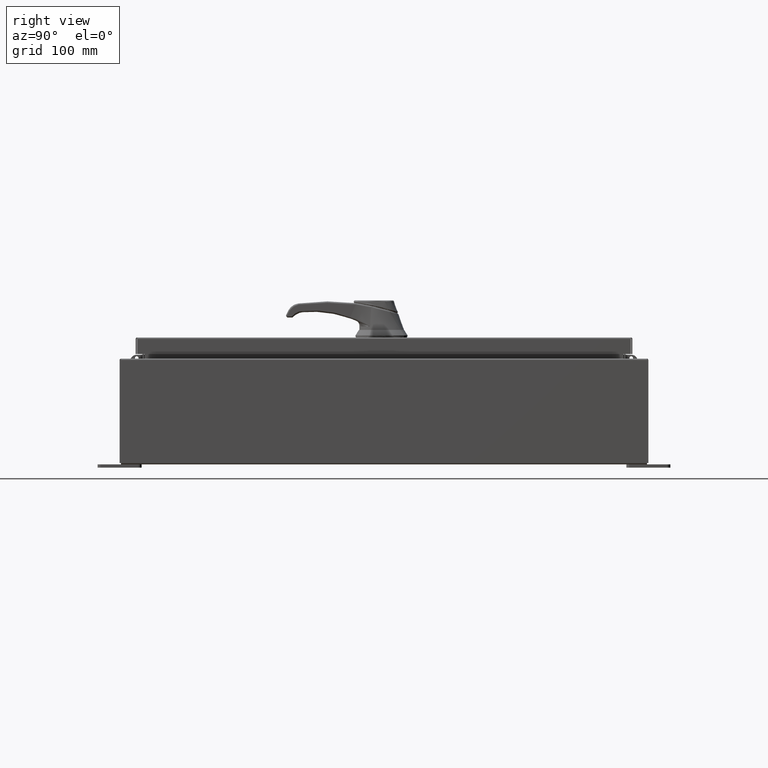
[diagram: clean part render]
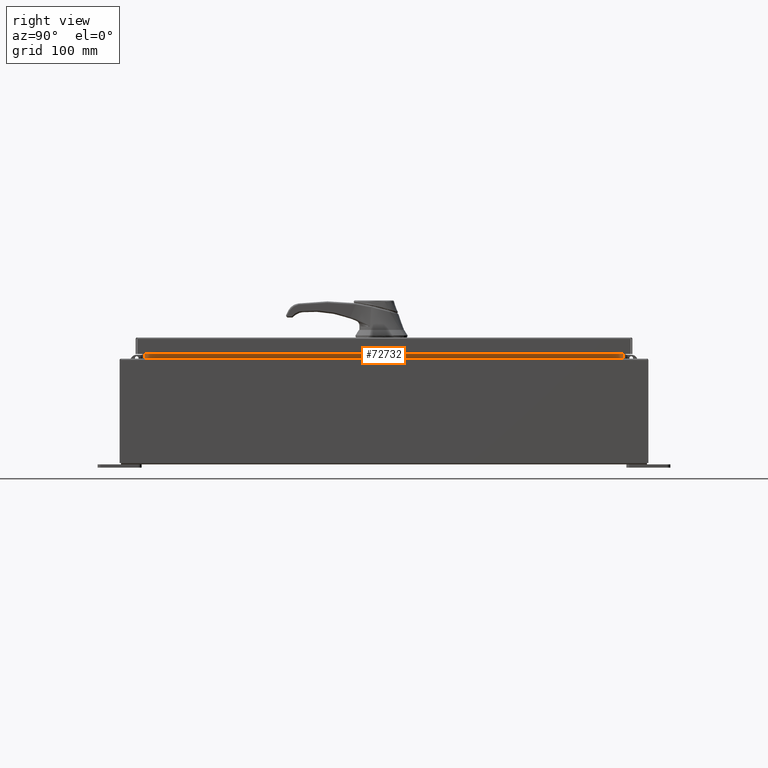
[diagram: same view with one face highlighted and labeled with its STEP entity id]
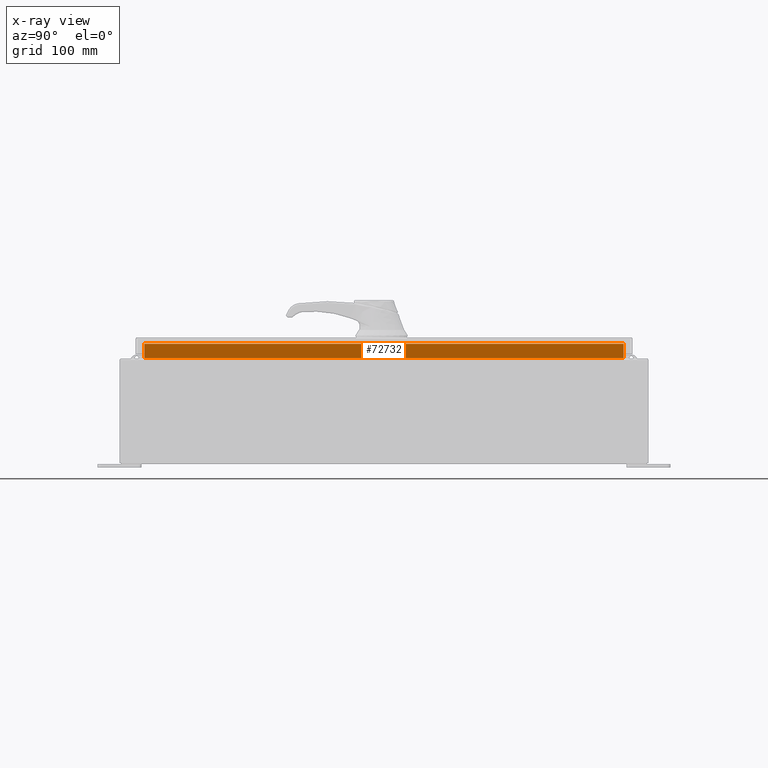
[diagram: x-ray of the same camera — body ghosted, the highlighted face saturated]
A machine part, right view. The second image highlights one B-rep face of the part: STEP entity #72732.
The next image is the same camera in x-ray: the body ghosted, the highlighted face saturated — about 0% of this face is hidden behind the body in this view.
In plain terms, the highlighted planar face has unit normal (1, 0, -0).
Its self-contained STEP definition (entity closure, byte-faithful):
#1093 = DIRECTION ( 'NONE',  ( 1.607708244547244000E-016, -1.000000000000000000, 1.607708244547244000E-016 ) ) ;
#6811 = ORIENTED_EDGE ( 'NONE', *, *, #83410, .F. ) ;
#8438 = LINE ( 'NONE', #110750, #54300 ) ;
#13467 = VECTOR ( 'NONE', #67002, 39.37007874015748100 ) ;
#19508 = CARTESIAN_POINT ( 'NONE',  ( 10.69970000000001400, 13.59375000000000200, 5.938300000000010600 ) ) ;
#22966 = ORIENTED_EDGE ( 'NONE', *, *, #31463, .F. ) ;
#25908 = EDGE_CURVE ( 'NONE', #48449, #116810, #83626, .T. ) ;
#31463 = EDGE_CURVE ( 'NONE', #116810, #56717, #8438, .T. ) ;
#34555 = VECTOR ( 'NONE', #1093, 39.37007874015748100 ) ;
#42793 = DIRECTION ( 'NONE',  ( 1.000000000000000000, 0.0000000000000000000, -4.723826639860392000E-015 ) ) ;
#43901 = CARTESIAN_POINT ( 'NONE',  ( 10.69970000000001800, -13.59375000000000400, 5.938300000000012300 ) ) ;
#47645 = CARTESIAN_POINT ( 'NONE',  ( 10.69970000000002100, -13.59375000000000200, 6.850600000000010700 ) ) ;
#48449 = VERTEX_POINT ( 'NONE', #85001 ) ;
#54300 = VECTOR ( 'NONE', #65192, 39.37007874015748100 ) ;
#55723 = FACE_OUTER_BOUND ( 'NONE', #94704, .T. ) ;
#56717 = VERTEX_POINT ( 'NONE', #80331 ) ;
#58968 = LINE ( 'NONE', #19508, #34555 ) ;
#60363 = LINE ( 'NONE', #47645, #108933 ) ;
#64003 = VERTEX_POINT ( 'NONE', #43901 ) ;
#64248 = ORIENTED_EDGE ( 'NONE', *, *, #25908, .F. ) ;
#65192 = DIRECTION ( 'NONE',  ( -4.723826639860392000E-015, -0.0000000000000000000, -1.000000000000000000 ) ) ;
#67002 = DIRECTION ( 'NONE',  ( 0.0000000000000000000, 1.000000000000000000, 0.0000000000000000000 ) ) ;
#71848 = AXIS2_PLACEMENT_3D ( 'NONE', #88418, #42793, #106771 ) ;
#72732 = ADVANCED_FACE ( 'NONE', ( #55723 ), #79175, .T. ) ;
#79175 = PLANE ( 'NONE',  #71848 ) ;
#80331 = CARTESIAN_POINT ( 'NONE',  ( 10.69970000000001800, 13.59375000000000400, 5.938300000000012300 ) ) ;
#83410 = EDGE_CURVE ( 'NONE', #56717, #64003, #58968, .T. ) ;
#83626 = LINE ( 'NONE', #85420, #13467 ) ;
#85001 = CARTESIAN_POINT ( 'NONE',  ( 10.69970000000002100, -13.59375000000000200, 6.762900000000009900 ) ) ;
#85420 = CARTESIAN_POINT ( 'NONE',  ( 10.69970000000002100, -13.59375000000000200, 6.762900000000009900 ) ) ;
#88418 = CARTESIAN_POINT ( 'NONE',  ( 10.69969999999998900, 0.0000000000000000000, -5.054352789851418100E-014 ) ) ;
#92460 = CARTESIAN_POINT ( 'NONE',  ( 10.69970000000002100, 13.59375000000000200, 6.762900000000009900 ) ) ;
#94704 = EDGE_LOOP ( 'NONE', ( #22966, #64248, #108987, #6811 ) ) ;
#106771 = DIRECTION ( 'NONE',  ( -4.723826639860392000E-015, 0.0000000000000000000, -1.000000000000000000 ) ) ;
#108933 = VECTOR ( 'NONE', #111607, 39.37007874015748100 ) ;
#108987 = ORIENTED_EDGE ( 'NONE', *, *, #115069, .F. ) ;
#110750 = CARTESIAN_POINT ( 'NONE',  ( 10.69970000000001800, 13.59375000000000200, 5.925300000000009800 ) ) ;
#111607 = DIRECTION ( 'NONE',  ( 4.723826639860403100E-015, -0.0000000000000000000, 1.000000000000000000 ) ) ;
#115069 = EDGE_CURVE ( 'NONE', #64003, #48449, #60363, .T. ) ;
#116810 = VERTEX_POINT ( 'NONE', #92460 ) ;